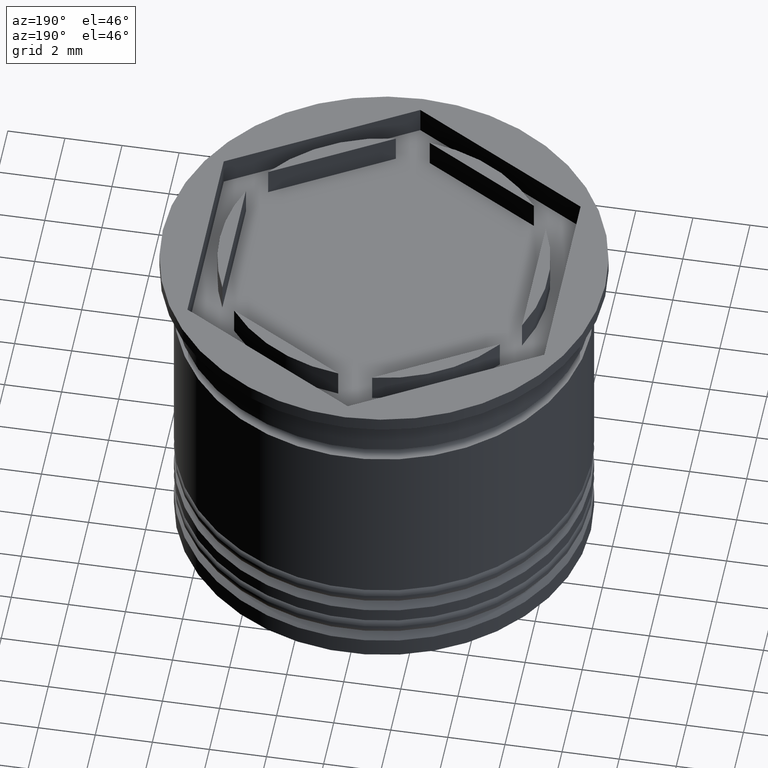
[diagram: clean part render]
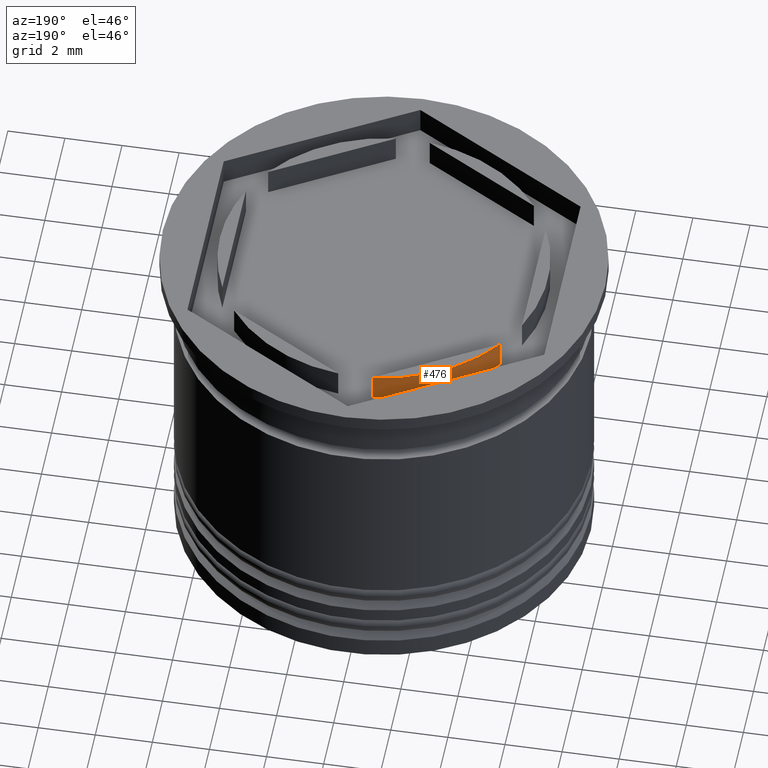
[diagram: same view with one face highlighted and labeled with its STEP entity id]
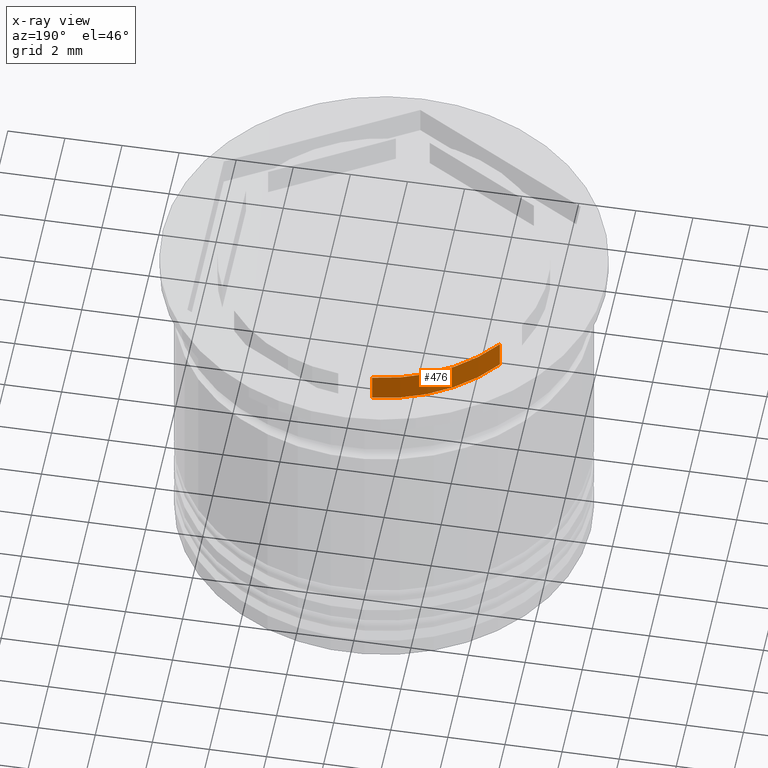
[diagram: x-ray of the same camera — body ghosted, the highlighted face saturated]
A machine part, auxiliary view. The second image highlights one B-rep face of the part: STEP entity #476.
The next image is the same camera in x-ray: the body ghosted, the highlighted face saturated — about 0% of this face is hidden behind the body in this view.
In plain terms, the highlighted cylindrical surface (partial cylindrical patch) has radius 5.75 mm, axis along (-0, -0, 1).
Its self-contained STEP definition (entity closure, byte-faithful):
#73 = VERTEX_POINT ( 'NONE', #1328 ) ;
#75 = EDGE_CURVE ( 'NONE', #416, #73, #1002, .T. ) ;
#115 = EDGE_LOOP ( 'NONE', ( #489, #671, #553, #1805 ) ) ;
#177 = LINE ( 'NONE', #461, #433 ) ;
#245 = EDGE_CURVE ( 'NONE', #416, #1917, #177, .T. ) ;
#308 = DIRECTION ( 'NONE',  ( -0.000000000000000000, -0.000000000000000000, 1.000000000000000000 ) ) ;
#335 = EDGE_CURVE ( 'NONE', #1917, #1874, #1306, .T. ) ;
#388 = DIRECTION ( 'NONE',  ( 1.000000000000000000, 0.000000000000000000, 0.000000000000000000 ) ) ;
#416 = VERTEX_POINT ( 'NONE', #586 ) ;
#433 = VECTOR ( 'NONE', #308, 1000.000000000000000 ) ;
#461 = CARTESIAN_POINT ( 'NONE',  ( -0.5939903988410044633, 5.719237309824159787, -1.000000000000000000 ) ) ;
#476 = ADVANCED_FACE ( 'NONE', ( #1355 ), #903, .T. ) ;
#489 = ORIENTED_EDGE ( 'NONE', *, *, #1820, .F. ) ;
#553 = ORIENTED_EDGE ( 'NONE', *, *, #245, .F. ) ;
#586 = CARTESIAN_POINT ( 'NONE',  ( -0.5939903988410083491, 5.719237309824159787, -1.000000000000000888 ) ) ;
#671 = ORIENTED_EDGE ( 'NONE', *, *, #335, .F. ) ;
#686 = VECTOR ( 'NONE', #1947, 1000.000000000000000 ) ;
#711 = DIRECTION ( 'NONE',  ( 1.000000000000000000, 0.000000000000000000, 0.000000000000000000 ) ) ;
#889 = DIRECTION ( 'NONE',  ( -0.000000000000000000, 0.000000000000000000, 1.000000000000000000 ) ) ;
#903 = CYLINDRICAL_SURFACE ( 'NONE', #1962, 5.750000000000000000 ) ;
#1002 = CIRCLE ( 'NONE', #1984, 5.750000000000000000 ) ;
#1185 = CARTESIAN_POINT ( 'NONE',  ( 0.000000000000000000, 0.000000000000000000, -1.000000000000000000 ) ) ;
#1208 = CARTESIAN_POINT ( 'NONE',  ( -4.656009601158989319, 3.374029429912444034, 0.000000000000000000 ) ) ;
#1291 = LINE ( 'NONE', #1614, #686 ) ;
#1306 = CIRCLE ( 'NONE', #1634, 5.750000000000000000 ) ;
#1328 = CARTESIAN_POINT ( 'NONE',  ( -4.656009601158991096, 3.374029429912443145, -1.000000000000000888 ) ) ;
#1330 = DIRECTION ( 'NONE',  ( -0.000000000000000000, -0.000000000000000000, 1.000000000000000000 ) ) ;
#1355 = FACE_OUTER_BOUND ( 'NONE', #115, .T. ) ;
#1492 = DIRECTION ( 'NONE',  ( 1.000000000000000000, 0.000000000000000000, 0.000000000000000000 ) ) ;
#1614 = CARTESIAN_POINT ( 'NONE',  ( -4.656009601158991984, 3.374029429912440925, -1.000000000000000000 ) ) ;
#1634 = AXIS2_PLACEMENT_3D ( 'NONE', #1718, #1746, #388 ) ;
#1718 = CARTESIAN_POINT ( 'NONE',  ( 0.000000000000000000, 0.000000000000000000, 0.000000000000000000 ) ) ;
#1723 = CARTESIAN_POINT ( 'NONE',  ( -0.5939903988410087932, 5.719237309824160675, 0.000000000000000000 ) ) ;
#1746 = DIRECTION ( 'NONE',  ( -0.000000000000000000, 0.000000000000000000, 1.000000000000000000 ) ) ;
#1805 = ORIENTED_EDGE ( 'NONE', *, *, #75, .T. ) ;
#1820 = EDGE_CURVE ( 'NONE', #1874, #73, #1291, .T. ) ;
#1874 = VERTEX_POINT ( 'NONE', #1208 ) ;
#1917 = VERTEX_POINT ( 'NONE', #1723 ) ;
#1947 = DIRECTION ( 'NONE',  ( 0.000000000000000000, 0.000000000000000000, -1.000000000000000000 ) ) ;
#1962 = AXIS2_PLACEMENT_3D ( 'NONE', #1978, #1330, #1492 ) ;
#1978 = CARTESIAN_POINT ( 'NONE',  ( 0.000000000000000000, 0.000000000000000000, -1.000000000000000000 ) ) ;
#1984 = AXIS2_PLACEMENT_3D ( 'NONE', #1185, #889, #711 ) ;